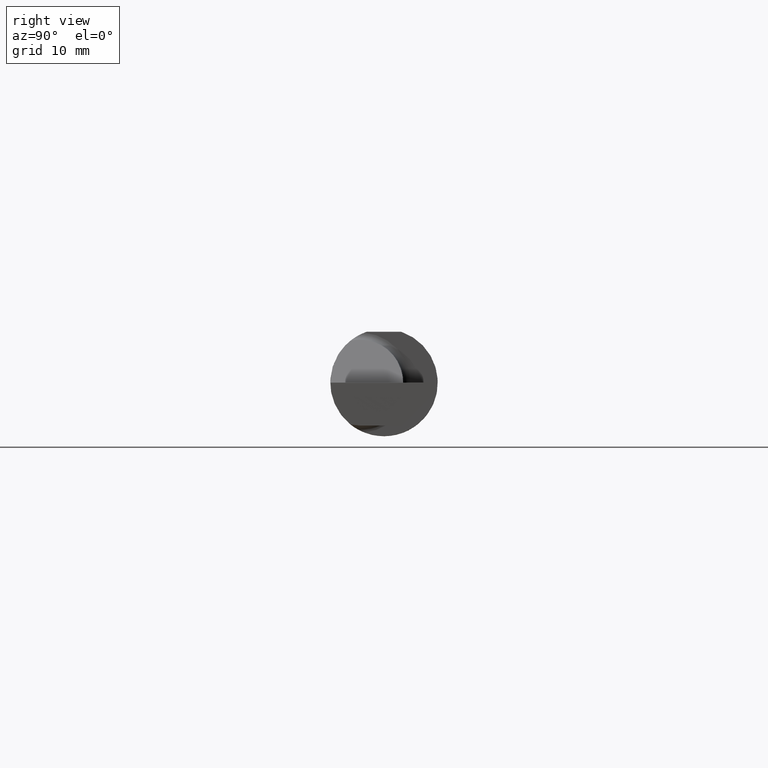
[diagram: clean part render]
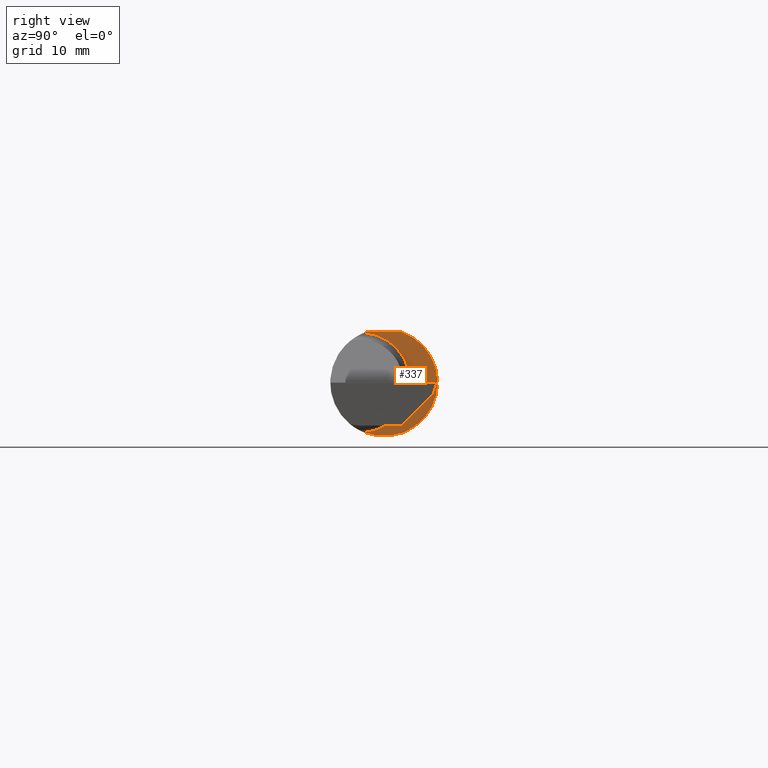
[diagram: same view with one face highlighted and labeled with its STEP entity id]
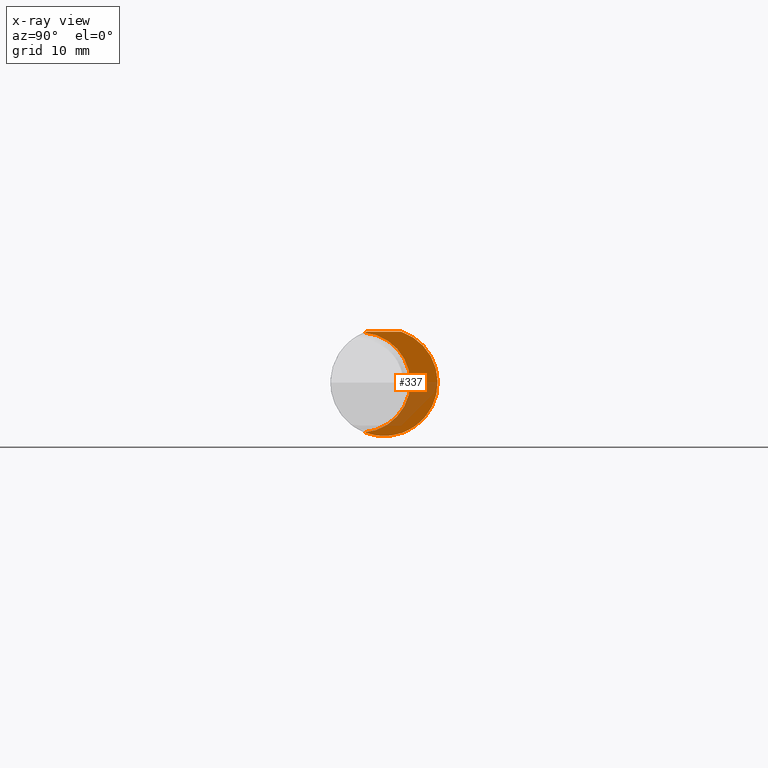
[diagram: x-ray of the same camera — body ghosted, the highlighted face saturated]
A machine part, right view. The second image highlights one B-rep face of the part: STEP entity #337.
The next image is the same camera in x-ray: the body ghosted, the highlighted face saturated — about 27% of this face is hidden behind the body in this view.
In plain terms, the highlighted planar face has unit normal (1, 0, 0).
Its self-contained STEP definition (entity closure, byte-faithful):
#2 = EDGE_CURVE ( 'NONE', #272, #41, #888, .T. ) ;
#29 = AXIS2_PLACEMENT_3D ( 'NONE', #490, #96, #103 ) ;
#31 = AXIS2_PLACEMENT_3D ( 'NONE', #430, #211, #264 ) ;
#41 = VERTEX_POINT ( 'NONE', #270 ) ;
#76 = CARTESIAN_POINT ( 'NONE',  ( 2.075000000000000178, -0.06039039658753699025, 0.1773499999999999799 ) ) ;
#96 = DIRECTION ( 'NONE',  ( 1.000000000000000000, 0.000000000000000000, 0.000000000000000000 ) ) ;
#99 = EDGE_CURVE ( 'NONE', #272, #229, #839, .T. ) ;
#103 = DIRECTION ( 'NONE',  ( 0.000000000000000000, 0.000000000000000000, -1.000000000000000000 ) ) ;
#185 = CARTESIAN_POINT ( 'NONE',  ( 2.075000000000000178, -0.08334999999999996578, 0.000000000000000000 ) ) ;
#211 = DIRECTION ( 'NONE',  ( 1.000000000000000000, 0.000000000000000000, 0.000000000000000000 ) ) ;
#229 = VERTEX_POINT ( 'NONE', #642 ) ;
#264 = DIRECTION ( 'NONE',  ( 0.000000000000000000, 0.000000000000000000, -1.000000000000000000 ) ) ;
#270 = CARTESIAN_POINT ( 'NONE',  ( 2.075000000000000178, -0.06851976604679065053, 0.1743704796142198643 ) ) ;
#272 = VERTEX_POINT ( 'NONE', #76 ) ;
#286 = VERTEX_POINT ( 'NONE', #310 ) ;
#310 = CARTESIAN_POINT ( 'NONE',  ( 2.075000000000000178, -0.06851976604679065053, -0.1743704796142198643 ) ) ;
#311 = EDGE_LOOP ( 'NONE', ( #650, #960, #636, #423 ) ) ;
#337 = ADVANCED_FACE ( 'NONE', ( #417 ), #569, .T. ) ;
#345 = AXIS2_PLACEMENT_3D ( 'NONE', #420, #730, #405 ) ;
#364 = CIRCLE ( 'NONE', #941, 0.1749999999999999889 ) ;
#405 = DIRECTION ( 'NONE',  ( 0.000000000000000000, 0.000000000000000000, -1.000000000000000000 ) ) ;
#417 = FACE_OUTER_BOUND ( 'NONE', #311, .T. ) ;
#420 = CARTESIAN_POINT ( 'NONE',  ( 2.075000000000000178, 0.000000000000000000, 0.000000000000000000 ) ) ;
#423 = ORIENTED_EDGE ( 'NONE', *, *, #1014, .T. ) ;
#430 = CARTESIAN_POINT ( 'NONE',  ( 2.075000000000000178, 0.000000000000000000, 0.000000000000000000 ) ) ;
#454 = DIRECTION ( 'NONE',  ( -0.000000000000000000, 1.000000000000000000, 0.000000000000000000 ) ) ;
#485 = DIRECTION ( 'NONE',  ( -1.000000000000000000, -0.000000000000000000, -0.000000000000000000 ) ) ;
#490 = CARTESIAN_POINT ( 'NONE',  ( 2.075000000000000178, 0.2666500000000000536, 0.000000000000000000 ) ) ;
#554 = VECTOR ( 'NONE', #454, 39.37007874015748143 ) ;
#569 = PLANE ( 'NONE',  #29 ) ;
#636 = ORIENTED_EDGE ( 'NONE', *, *, #2, .T. ) ;
#642 = CARTESIAN_POINT ( 'NONE',  ( 2.075000000000000178, 0.06039039658754216666, 0.1773499999999999799 ) ) ;
#650 = ORIENTED_EDGE ( 'NONE', *, *, #1007, .T. ) ;
#658 = DIRECTION ( 'NONE',  ( 0.000000000000000000, 0.000000000000000000, 1.000000000000000000 ) ) ;
#730 = DIRECTION ( 'NONE',  ( 1.000000000000000000, 0.000000000000000000, 0.000000000000000000 ) ) ;
#822 = CIRCLE ( 'NONE', #345, 0.1873499999999999888 ) ;
#839 = LINE ( 'NONE', #926, #554 ) ;
#888 = CIRCLE ( 'NONE', #31, 0.1873499999999999888 ) ;
#926 = CARTESIAN_POINT ( 'NONE',  ( 2.075000000000000178, -0.1873500000000000165, 0.1773499999999999799 ) ) ;
#941 = AXIS2_PLACEMENT_3D ( 'NONE', #185, #485, #658 ) ;
#960 = ORIENTED_EDGE ( 'NONE', *, *, #99, .F. ) ;
#1007 = EDGE_CURVE ( 'NONE', #286, #229, #822, .T. ) ;
#1014 = EDGE_CURVE ( 'NONE', #41, #286, #364, .T. ) ;